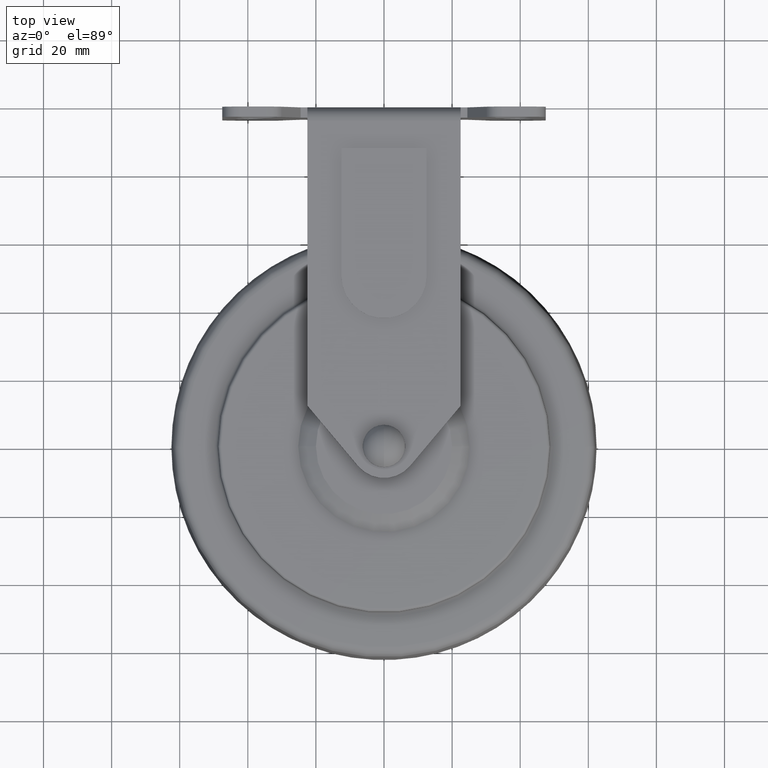
[diagram: clean part render]
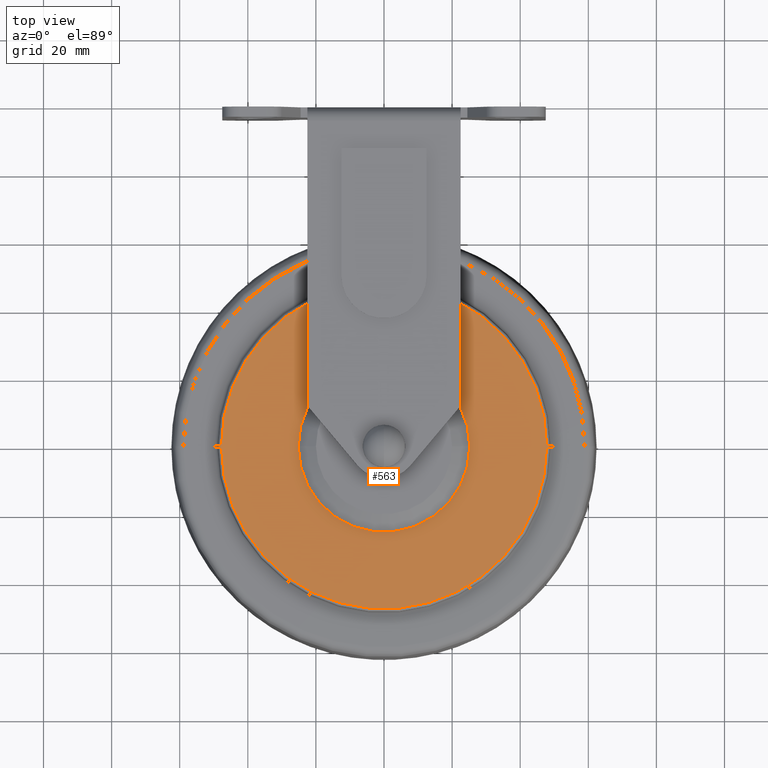
[diagram: same view with one face highlighted and labeled with its STEP entity id]
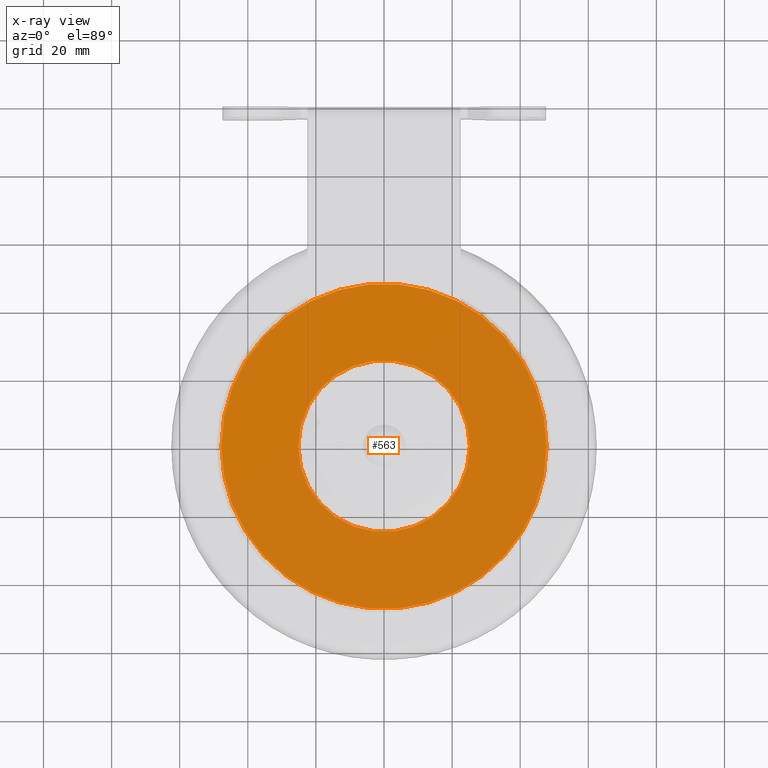
[diagram: x-ray of the same camera — body ghosted, the highlighted face saturated]
A machine part, top view. The second image highlights one B-rep face of the part: STEP entity #563.
The next image is the same camera in x-ray: the body ghosted, the highlighted face saturated — about 0% of this face is hidden behind the body in this view.
In plain terms, the highlighted planar face has unit normal (0, 0, 1).
Its self-contained STEP definition (entity closure, byte-faithful):
#156 = FACE_OUTER_BOUND ( 'NONE', #3691, .T. ) ;
#180 = DIRECTION ( 'NONE',  ( 0.000000000000000000, 0.000000000000000000, 1.000000000000000000 ) ) ;
#190 = EDGE_CURVE ( 'NONE', #855, #4276, #2771, .T. ) ;
#230 = AXIS2_PLACEMENT_3D ( 'NONE', #4371, #3647, #604 ) ;
#319 = CIRCLE ( 'NONE', #4898, 47.75000000000000000 ) ;
#548 = DIRECTION ( 'NONE',  ( 1.000000000000000000, 0.000000000000000000, -0.000000000000000000 ) ) ;
#563 = ADVANCED_FACE ( 'NONE', ( #156, #3174 ), #2429, .T. ) ;
#587 = AXIS2_PLACEMENT_3D ( 'NONE', #4092, #2227, #2558 ) ;
#604 = DIRECTION ( 'NONE',  ( -1.000000000000000000, 0.000000000000000000, 0.000000000000000000 ) ) ;
#619 = CIRCLE ( 'NONE', #230, 25.19615242270661426 ) ;
#632 = CARTESIAN_POINT ( 'NONE',  ( 25.19615242270661426, 3.085638741529648640E-15, 16.00000000000000355 ) ) ;
#855 = VERTEX_POINT ( 'NONE', #1431 ) ;
#894 = CIRCLE ( 'NONE', #587, 25.19615242270661426 ) ;
#1000 = VERTEX_POINT ( 'NONE', #2730 ) ;
#1236 = ORIENTED_EDGE ( 'NONE', *, *, #4447, .T. ) ;
#1248 = VERTEX_POINT ( 'NONE', #632 ) ;
#1279 = DIRECTION ( 'NONE',  ( 0.000000000000000000, 0.000000000000000000, 1.000000000000000000 ) ) ;
#1431 = CARTESIAN_POINT ( 'NONE',  ( -47.75000000000000000, 5.908920805885979576E-15, 16.00000000000000000 ) ) ;
#1617 = CARTESIAN_POINT ( 'NONE',  ( 0.000000000000000000, 0.000000000000000000, 16.00000000000000000 ) ) ;
#1985 = CARTESIAN_POINT ( 'NONE',  ( 47.75000000000000000, 0.000000000000000000, 16.00000000000000000 ) ) ;
#2227 = DIRECTION ( 'NONE',  ( -0.000000000000000000, -0.000000000000000000, -1.000000000000000000 ) ) ;
#2237 = CARTESIAN_POINT ( 'NONE',  ( 0.000000000000000000, 0.000000000000000000, 16.00000000000000000 ) ) ;
#2429 = PLANE ( 'NONE',  #3171 ) ;
#2500 = ORIENTED_EDGE ( 'NONE', *, *, #4238, .T. ) ;
#2558 = DIRECTION ( 'NONE',  ( -1.000000000000000000, 0.000000000000000000, 0.000000000000000000 ) ) ;
#2730 = CARTESIAN_POINT ( 'NONE',  ( -25.19615242270661426, 0.000000000000000000, 16.00000000000000355 ) ) ;
#2771 = CIRCLE ( 'NONE', #4832, 47.75000000000000000 ) ;
#3115 = EDGE_LOOP ( 'NONE', ( #4752, #1236 ) ) ;
#3131 = DIRECTION ( 'NONE',  ( 1.000000000000000000, 0.000000000000000000, 0.000000000000000000 ) ) ;
#3171 = AXIS2_PLACEMENT_3D ( 'NONE', #3941, #180, #548 ) ;
#3174 = FACE_BOUND ( 'NONE', #3115, .T. ) ;
#3465 = EDGE_CURVE ( 'NONE', #1000, #1248, #894, .T. ) ;
#3647 = DIRECTION ( 'NONE',  ( -0.000000000000000000, -0.000000000000000000, -1.000000000000000000 ) ) ;
#3691 = EDGE_LOOP ( 'NONE', ( #2500, #4019 ) ) ;
#3941 = CARTESIAN_POINT ( 'NONE',  ( 0.000000000000000000, 25.19615242270661426, 16.00000000000000000 ) ) ;
#4019 = ORIENTED_EDGE ( 'NONE', *, *, #190, .T. ) ;
#4092 = CARTESIAN_POINT ( 'NONE',  ( 0.000000000000000000, 0.000000000000000000, 16.00000000000000355 ) ) ;
#4099 = DIRECTION ( 'NONE',  ( 1.000000000000000000, 0.000000000000000000, 0.000000000000000000 ) ) ;
#4171 = DIRECTION ( 'NONE',  ( 0.000000000000000000, 0.000000000000000000, 1.000000000000000000 ) ) ;
#4238 = EDGE_CURVE ( 'NONE', #4276, #855, #319, .T. ) ;
#4276 = VERTEX_POINT ( 'NONE', #1985 ) ;
#4371 = CARTESIAN_POINT ( 'NONE',  ( 0.000000000000000000, 0.000000000000000000, 16.00000000000000355 ) ) ;
#4447 = EDGE_CURVE ( 'NONE', #1248, #1000, #619, .T. ) ;
#4752 = ORIENTED_EDGE ( 'NONE', *, *, #3465, .T. ) ;
#4832 = AXIS2_PLACEMENT_3D ( 'NONE', #1617, #1279, #3131 ) ;
#4898 = AXIS2_PLACEMENT_3D ( 'NONE', #2237, #4171, #4099 ) ;